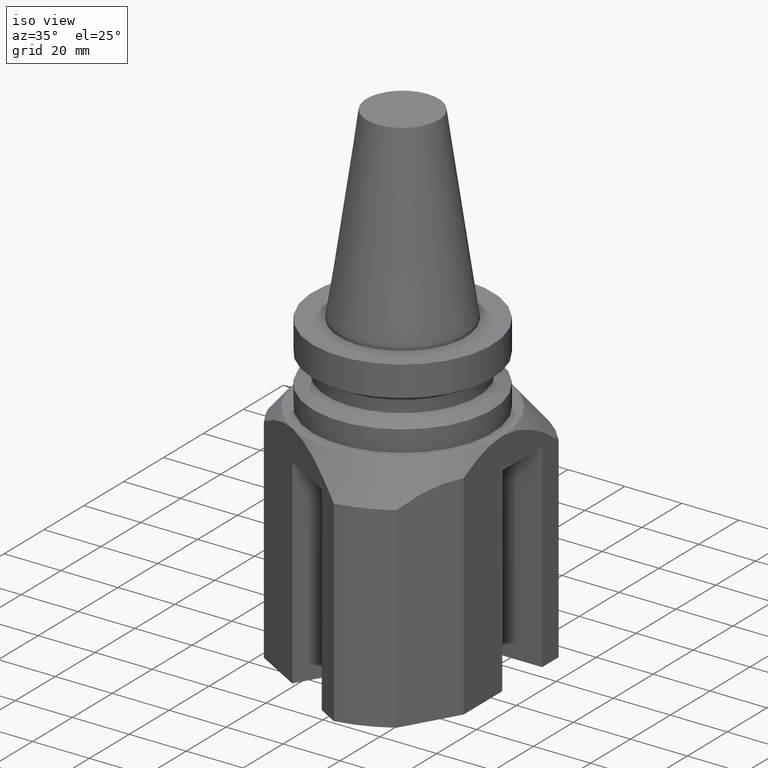
[diagram: clean part render]
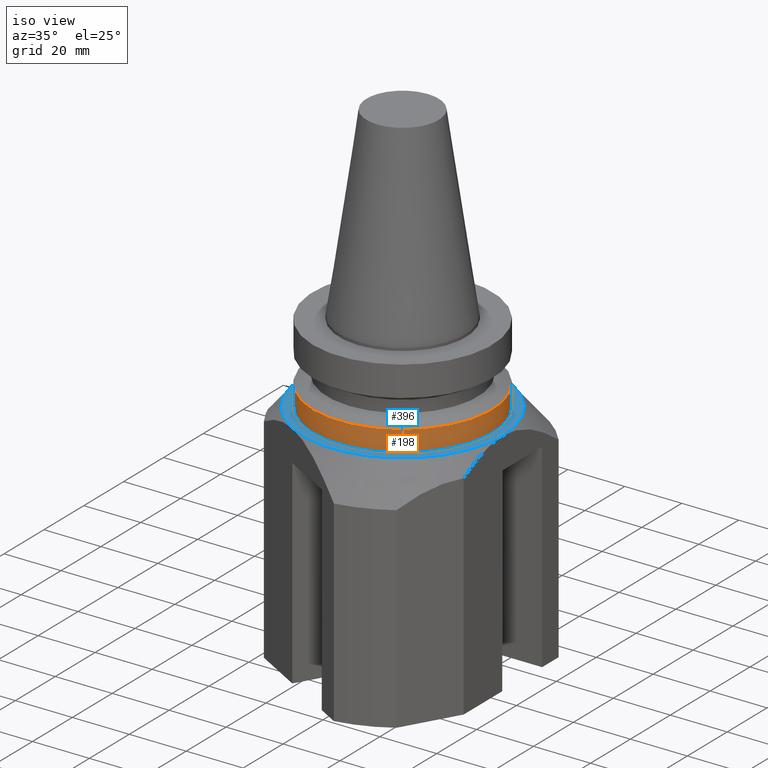
[diagram: same view with the hole feature highlighted: cylindrical wall and planar end face, labeled with their STEP entity ids]
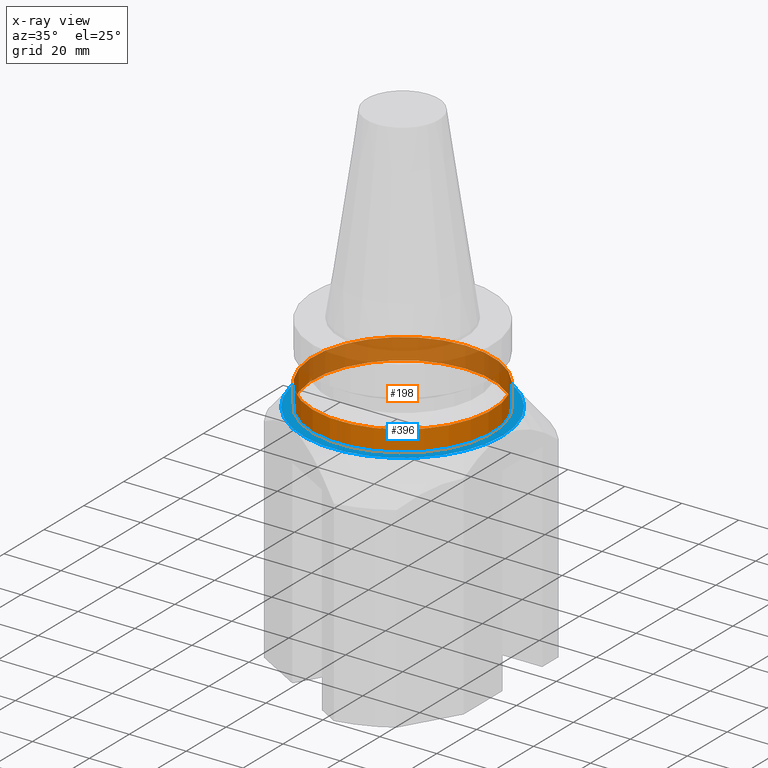
[diagram: x-ray of the same camera — body ghosted, the hole faces saturated]
A machine part, iso view. The highlighted faces form one hole feature of diameter 63 mm: the cylindrical wall (entity #198, orange) and its adjacent planar end face (entity #396, blue) — they share a circular edge in the B-rep.
The next image is the same camera in x-ray (body ghosted, the hole faces saturated) — the bore reads through the body.
Wall:
#198=ADVANCED_FACE('Unnamed[1]',(#518,#519),#520,.T.);
#353=EDGE_CURVE('Unnamed[1]',#727,#727,#728,.T.);
#377=EDGE_CURVE('Unnamed[1]',#757,#757,#758,.T.);
#518=FACE_BOUND('',#940,.T.);
#519=FACE_BOUND('',#941,.T.);
#520=CYLINDRICAL_SURFACE('',#942,31.4999999999992);
#727=VERTEX_POINT('',#1310);
#728=CIRCLE('',#1311,31.4999999999984);
#757=VERTEX_POINT('',#1353);
#758=CIRCLE('',#1354,31.5000000000001);
#940=EDGE_LOOP('',(#1528));
#941=EDGE_LOOP('',(#1529));
#942=AXIS2_PLACEMENT_3D('',#1530,#1531,#1532);
#1310=CARTESIAN_POINT('',(-4.40872834554063E-015,31.4999999999983,-28.9999997615812));
#1311=AXIS2_PLACEMENT_3D('',#1746,#1747,#1748);
#1353=CARTESIAN_POINT('',(-3.30654635769701E-016,31.5000000000001,-21.5999999999999));
#1354=AXIS2_PLACEMENT_3D('',#1786,#1787,#1788);
#1528=ORIENTED_EDGE('',*,*,#377,.F.);
#1529=ORIENTED_EDGE('',*,*,#353,.T.);
#1530=CARTESIAN_POINT('',(-1.39426037425974E-014,-1.82502233461722E-014,-25.2999998807906));
#1531=DIRECTION('',(5.51091059616309E-016,2.6993447194459E-016,1.0));
#1532=DIRECTION('',(3.67394039744206E-016,1.0,-2.6993447194459E-016));
#1746=CARTESIAN_POINT('',(-1.59816405974825E-014,-1.92489808601884E-014,-28.9999997615812));
#1747=DIRECTION('',(5.51091059616309E-016,2.69934471944597E-016,1.0));
#1748=DIRECTION('',(3.67394039744206E-016,1.0,-2.69934471944597E-016));
#1786=CARTESIAN_POINT('',(-1.19035668877122E-014,-1.72514658321559E-014,-21.5999999999999));
#1787=DIRECTION('',(5.51091059616309E-016,2.69934471944582E-016,1.0));
#1788=DIRECTION('',(3.67394039744206E-016,1.0,-2.69934471944582E-016));
End face:
#143=EDGE_CURVE('Unnamed[1]',#431,#432,#433,.T.);
#202=EDGE_CURVE('Unnamed[1]',#525,#526,#527,.T.);
#218=EDGE_CURVE('Unnamed[1]',#432,#550,#551,.T.);
#300=EDGE_CURVE('Unnamed[1]',#526,#612,#662,.T.);
#353=EDGE_CURVE('Unnamed[1]',#727,#727,#728,.T.);
#375=EDGE_CURVE('Unnamed[1]',#550,#525,#755,.T.);
#396=ADVANCED_FACE('Unnamed[1]',(#779,#780),#781,.T.);
#407=EDGE_CURVE('Unnamed[1]',#612,#431,#794,.T.);
#431=VERTEX_POINT('',#811);
#432=VERTEX_POINT('',#812);
#433=CIRCLE('',#813,35.0000014696205);
#525=VERTEX_POINT('',#950);
#526=VERTEX_POINT('',#951);
#527=LINE('',#952,#953);
#550=VERTEX_POINT('',#985);
#551=LINE('',#986,#987);
#612=VERTEX_POINT('',#1082);
#662=CIRCLE('',#1187,35.0000014696205);
#727=VERTEX_POINT('',#1310);
#728=CIRCLE('',#1311,31.4999999999984);
#755=CIRCLE('',#1350,35.0000014696205);
#779=FACE_BOUND('',#1396,.T.);
#780=FACE_OUTER_BOUND('',#1397,.T.);
#781=PLANE('',#1398);
#794=LINE('',#1419,#1420);
#811=CARTESIAN_POINT('',(35.0000000000001,0.0101426537612961,-28.9999997615812));
#812=CARTESIAN_POINT('',(-17.4912161996077,30.3159604619747,-28.9999997615812));
#813=AXIS2_PLACEMENT_3D('',#1427,#1428,#1429);
#950=CARTESIAN_POINT('',(-17.508783799782,-30.3058178032853,-28.9999997615812));
#951=CARTESIAN_POINT('',(-17.4912162002204,-30.3159604616213,-28.9999997615812));
#952=CARTESIAN_POINT('',(-22.7706200467827,-27.2678952296474,-28.9999997615812));
#953=VECTOR('',#1534,1.0);
#985=CARTESIAN_POINT('',(-17.5087838003882,30.3058178029351,-28.9999997615812));
#986=CARTESIAN_POINT('',(-12.2293799532182,33.3538830352591,-28.9999997615812));
#987=VECTOR('',#1560,1.0);
#1082=CARTESIAN_POINT('',(35.0000000000001,-0.0101426537624546,-28.9999997615812));
#1187=AXIS2_PLACEMENT_3D('',#1657,#1658,#1659);
#1310=CARTESIAN_POINT('',(-4.40872834554063E-015,31.4999999999983,-28.9999997615812));
#1311=AXIS2_PLACEMENT_3D('',#1746,#1747,#1748);
#1350=AXIS2_PLACEMENT_3D('',#1783,#1784,#1785);
#1396=EDGE_LOOP('',(#1816));
#1397=EDGE_LOOP('',(#1817,#1818,#1819,#1820,#1821,#1822));
#1398=AXIS2_PLACEMENT_3D('',#1823,#1824,#1825);
#1419=CARTESIAN_POINT('',(35.0000000000004,18.8515127454982,-28.9999997615812));
#1420=VECTOR('',#1835,1.0);
#1427=CARTESIAN_POINT('',(-1.59816405974825E-014,-1.92489808601884E-014,-28.9999997615812));
#1428=DIRECTION('',(5.51091059616309E-016,2.69934471944565E-016,1.0));
#1429=DIRECTION('',(3.67394039744206E-016,1.0,-2.69934471944565E-016));
#1534=DIRECTION('',(0.86602540378441,-0.500000000000051,-4.16026517468818E-016));
#1560=DIRECTION('',(-0.866025403784461,-0.499999999999961,5.38491197383583E-016));
#1657=CARTESIAN_POINT('',(-1.59816405974825E-014,-1.92489808601884E-014,-28.9999997615812));
#1658=DIRECTION('',(5.51091059616309E-016,2.69934471944565E-016,1.0));
#1659=DIRECTION('',(3.67394039744206E-016,1.0,-2.69934471944565E-016));
#1746=CARTESIAN_POINT('',(-1.59816405974825E-014,-1.92489808601884E-014,-28.9999997615812));
#1747=DIRECTION('',(5.51091059616309E-016,2.69934471944597E-016,1.0));
#1748=DIRECTION('',(3.67394039744206E-016,1.0,-2.69934471944597E-016));
#1783=CARTESIAN_POINT('',(-1.59816405974825E-014,-1.92489808601884E-014,-28.9999997615812));
#1784=DIRECTION('',(5.51091059616309E-016,2.69934471944565E-016,1.0));
#1785=DIRECTION('',(3.67394039744206E-016,1.0,-2.69934471944565E-016));
#1816=ORIENTED_EDGE('',*,*,#353,.F.);
#1817=ORIENTED_EDGE('',*,*,#218,.T.);
#1818=ORIENTED_EDGE('',*,*,#375,.T.);
#1819=ORIENTED_EDGE('',*,*,#202,.T.);
#1820=ORIENTED_EDGE('',*,*,#300,.T.);
#1821=ORIENTED_EDGE('',*,*,#407,.T.);
#1822=ORIENTED_EDGE('',*,*,#143,.T.);
#1823=CARTESIAN_POINT('',(-3.76578850602306E-015,33.2500007348094,-28.9999997615812));
#1824=DIRECTION('',(5.51091059616309E-016,1.22464679914735E-016,1.0));
#1825=DIRECTION('',(3.67394039744206E-016,1.0,-1.22464679914735E-016));
#1835=DIRECTION('',(1.58715021748581E-014,1.0,-1.22464679914744E-016));